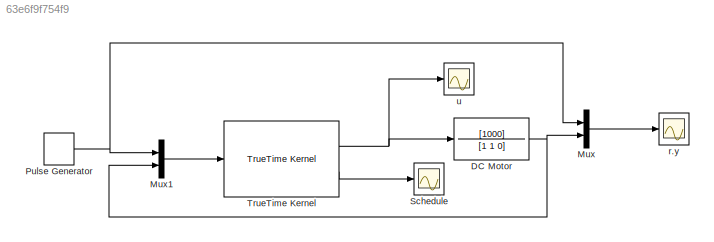
MODEL slx_63e6f9f754f9
KIND model
CONFIG AbsTol = auto
CONFIG EnableMultiTasking = off
CONFIG FixedStep = auto
CONFIG MaxStep = auto
CONFIG MinStep = auto
CONFIG RelTol = 1e-3
CONFIG SampleTimeConstraint = Unconstrained
CONFIG Solver = VariableStepAuto
CONFIG SolverName = VariableStepAuto
CONFIG StartTime = 0.0
CONFIG StopTime = 5.0
BLOCK [TransferFcn] DC Motor
  Denominator = [1 1 0]
  Numerator = [1000]
BLOCK [Mux] Mux
  DisplayOption = bar
  Inputs = 2
  Ports = [2, 1]
BLOCK [Mux] Mux1
  DisplayOption = bar
  Inputs = 2
  Ports = [2, 1]
BLOCK [DiscretePulseGenerator] Pulse Generator 
  Amplitude = 2
  Period = 1
  PhaseDelay = 0.1
  Ports = [0, 1]
  PulseType = Time based
  PulseWidth = 50
BLOCK [Scope] Schedule
  Floating = off
  NumInputPorts = 1
  Ports = [1]
  ScopeSpecificationString = Simulink.scopes.TimeScopeBlockCfg('CurrentConfiguration', extmgr.ConfigurationSet(extmgr.Configuration('Core','General UI',true),extmgr.Configuration('Core','Source UI',true),extmgr.Configuration('Sources','WiredSimulink',true,'DataLoggingVariableName','ScopeData1'),extmgr.Configuration('Visuals','Time Domain',true,'SerializedDisplays',{struct('MinYLimReal','0.9375','MaxYLimReal','1.5625','YLabelR...<+1367ch>
BLOCK [Reference] TrueTime Kernel   REF=truetime/TrueTime Kernel  (lib defined in slx_0362a698a4ec)
  Ports = [1, 2]
  SourceBlock = truetime/TrueTime Kernel
BLOCK [Scope] r.y
  Floating = off
  NumInputPorts = 1
  Ports = [1]
  ScopeSpecificationString = Simulink.scopes.TimeScopeBlockCfg('CurrentConfiguration', extmgr.ConfigurationSet(extmgr.Configuration('Core','General UI',true),extmgr.Configuration('Core','Source UI',true),extmgr.Configuration('Sources','WiredSimulink',true,'DataLoggingVariableName','ScopeData2'),extmgr.Configuration('Visuals','Time Domain',true,'SerializedDisplays',{struct('MinYLimReal','-0.3642','MaxYLimReal','2.3642','YLabel...<+1455ch>
BLOCK [Scope] u
  Floating = off
  NumInputPorts = 1
  Ports = [1]
  ScopeSpecificationString = Simulink.scopes.TimeScopeBlockCfg('CurrentConfiguration', extmgr.ConfigurationSet(extmgr.Configuration('Core','General UI',true),extmgr.Configuration('Core','Source UI',true),extmgr.Configuration('Sources','WiredSimulink',true),extmgr.Configuration('Visuals','Time Domain',true,'SerializedDisplays',{struct('MinYLimReal','-1.30198','MaxYLimReal','1.30317','YLabelReal','','MinYLimMag','0.00000','MaxY...<+1413ch>
NET DC Motor:1 -> Mux1:2, Mux:2
LINE Mux1:1 -> TrueTime Kernel :1
LINE Mux:1 -> r.y:1
NET Pulse Generator :1 -> Mux1:1, Mux:1
NET TrueTime Kernel :1 -> DC Motor:1, u:1
LINE TrueTime Kernel :2 -> Schedule:1
note: NET lines group one-source signal fan-out (src -> all destinations, sorted); 1:1 wires keep LINE
